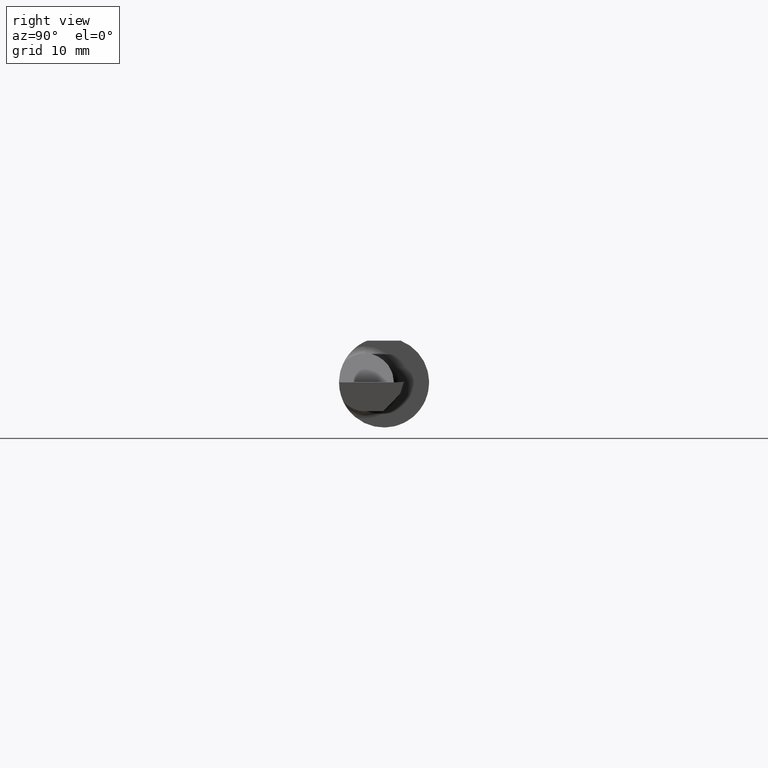
[diagram: clean part render]
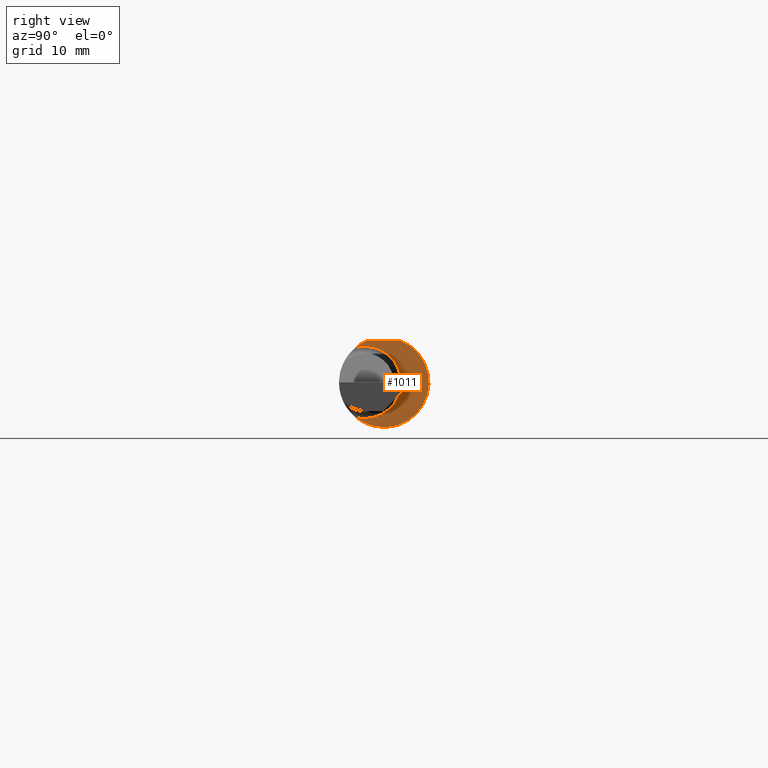
[diagram: same view with one face highlighted and labeled with its STEP entity id]
A machine part, right view. The second image highlights one B-rep face of the part: STEP entity #1011.
In plain terms, the highlighted planar face has unit normal (1, 0, 0).
Its self-contained STEP definition (entity closure, byte-faithful):
#9 = VERTEX_POINT ( 'NONE', #148 ) ;
#17 = CARTESIAN_POINT ( 'NONE',  ( 39.37000000000000455, -2.519138184568832983, -3.061811883615197072 ) ) ;
#18 = CIRCLE ( 'NONE', #612, 3.964939999999999465 ) ;
#28 = DIRECTION ( 'NONE',  ( 0.000000000000000000, 0.000000000000000000, -1.000000000000000000 ) ) ;
#75 = AXIS2_PLACEMENT_3D ( 'NONE', #647, #619, #79 ) ;
#78 = VERTEX_POINT ( 'NONE', #1155 ) ;
#79 = DIRECTION ( 'NONE',  ( 0.000000000000000000, 0.000000000000000000, -1.000000000000000000 ) ) ;
#106 = DIRECTION ( 'NONE',  ( 0.000000000000000000, 0.000000000000000000, -1.000000000000000000 ) ) ;
#109 = DIRECTION ( 'NONE',  ( 0.000000000000000000, 0.000000000000000000, -1.000000000000000000 ) ) ;
#111 = VERTEX_POINT ( 'NONE', #1147 ) ;
#121 = AXIS2_PLACEMENT_3D ( 'NONE', #735, #155, #1122 ) ;
#127 = AXIS2_PLACEMENT_3D ( 'NONE', #964, #1137, #106 ) ;
#131 = VERTEX_POINT ( 'NONE', #256 ) ;
#140 = CIRCLE ( 'NONE', #302, 3.175000000000000266 ) ;
#148 = CARTESIAN_POINT ( 'NONE',  ( 39.37000000000000455, -1.678939999999999433, -3.175000000000000266 ) ) ;
#155 = DIRECTION ( 'NONE',  ( -1.000000000000000000, -0.000000000000000000, -0.000000000000000000 ) ) ;
#166 = LINE ( 'NONE', #475, #1026 ) ;
#174 = DIRECTION ( 'NONE',  ( 0.000000000000000000, -1.000000000000000000, 0.000000000000000000 ) ) ;
#204 = DIRECTION ( 'NONE',  ( -1.000000000000000000, -0.000000000000000000, -0.000000000000000000 ) ) ;
#210 = CARTESIAN_POINT ( 'NONE',  ( 39.37000000000000455, -1.678939999999999433, 0.000000000000000000 ) ) ;
#213 = EDGE_CURVE ( 'NONE', #131, #78, #166, .T. ) ;
#248 = DIRECTION ( 'NONE',  ( 1.000000000000000000, 0.000000000000000000, 0.000000000000000000 ) ) ;
#256 = CARTESIAN_POINT ( 'NONE',  ( 39.37000000000000455, 1.462034237629201039, 3.685539999999999150 ) ) ;
#259 = PLANE ( 'NONE',  #75 ) ;
#294 = ORIENTED_EDGE ( 'NONE', *, *, #213, .T. ) ;
#302 = AXIS2_PLACEMENT_3D ( 'NONE', #210, #204, #28 ) ;
#321 = DIRECTION ( 'NONE',  ( 0.000000000000000000, 0.000000000000000000, -1.000000000000000000 ) ) ;
#326 = ORIENTED_EDGE ( 'NONE', *, *, #518, .T. ) ;
#394 = ORIENTED_EDGE ( 'NONE', *, *, #414, .T. ) ;
#414 = EDGE_CURVE ( 'NONE', #9, #1199, #140, .T. ) ;
#452 = FACE_OUTER_BOUND ( 'NONE', #941, .T. ) ;
#475 = CARTESIAN_POINT ( 'NONE',  ( 39.37000000000000455, 2.540000000000000480, 3.685539999999999150 ) ) ;
#518 = EDGE_CURVE ( 'NONE', #78, #696, #1129, .T. ) ;
#612 = AXIS2_PLACEMENT_3D ( 'NONE', #771, #1159, #109 ) ;
#619 = DIRECTION ( 'NONE',  ( 1.000000000000000000, 0.000000000000000000, 0.000000000000000000 ) ) ;
#647 = CARTESIAN_POINT ( 'NONE',  ( 39.37000000000000455, 4.671060000000001544, 0.000000000000000000 ) ) ;
#665 = CIRCLE ( 'NONE', #127, 3.175000000000000266 ) ;
#696 = VERTEX_POINT ( 'NONE', #1027 ) ;
#727 = ORIENTED_EDGE ( 'NONE', *, *, #871, .T. ) ;
#735 = CARTESIAN_POINT ( 'NONE',  ( 39.37000000000000455, -1.678939999999999433, 0.000000000000000000 ) ) ;
#771 = CARTESIAN_POINT ( 'NONE',  ( 39.37000000000000455, 0.000000000000000000, 0.000000000000000000 ) ) ;
#808 = CARTESIAN_POINT ( 'NONE',  ( 39.37000000000000455, 0.000000000000000000, 0.000000000000000000 ) ) ;
#871 = EDGE_CURVE ( 'NONE', #1199, #131, #18, .T. ) ;
#904 = AXIS2_PLACEMENT_3D ( 'NONE', #808, #248, #321 ) ;
#914 = ORIENTED_EDGE ( 'NONE', *, *, #977, .T. ) ;
#941 = EDGE_LOOP ( 'NONE', ( #326, #1065, #914, #394, #727, #294 ) ) ;
#964 = CARTESIAN_POINT ( 'NONE',  ( 39.37000000000000455, -1.678939999999999433, 0.000000000000000000 ) ) ;
#977 = EDGE_CURVE ( 'NONE', #111, #9, #980, .T. ) ;
#980 = CIRCLE ( 'NONE', #121, 3.175000000000000266 ) ;
#1011 = ADVANCED_FACE ( 'NONE', ( #452 ), #259, .T. ) ;
#1026 = VECTOR ( 'NONE', #174, 1000.000000000000000 ) ;
#1027 = CARTESIAN_POINT ( 'NONE',  ( 39.37000000000000455, -2.519138184568832983, 3.061811883615197072 ) ) ;
#1065 = ORIENTED_EDGE ( 'NONE', *, *, #1180, .T. ) ;
#1122 = DIRECTION ( 'NONE',  ( 0.000000000000000000, 0.000000000000000000, -1.000000000000000000 ) ) ;
#1129 = CIRCLE ( 'NONE', #904, 3.964939999999999465 ) ;
#1137 = DIRECTION ( 'NONE',  ( -1.000000000000000000, -0.000000000000000000, -0.000000000000000000 ) ) ;
#1147 = CARTESIAN_POINT ( 'NONE',  ( 39.37000000000000455, -1.678939999999998989, 3.175000000000000266 ) ) ;
#1155 = CARTESIAN_POINT ( 'NONE',  ( 39.37000000000000455, -1.462034237629201483, 3.685539999999999150 ) ) ;
#1159 = DIRECTION ( 'NONE',  ( 1.000000000000000000, 0.000000000000000000, 0.000000000000000000 ) ) ;
#1180 = EDGE_CURVE ( 'NONE', #696, #111, #665, .T. ) ;
#1199 = VERTEX_POINT ( 'NONE', #17 ) ;